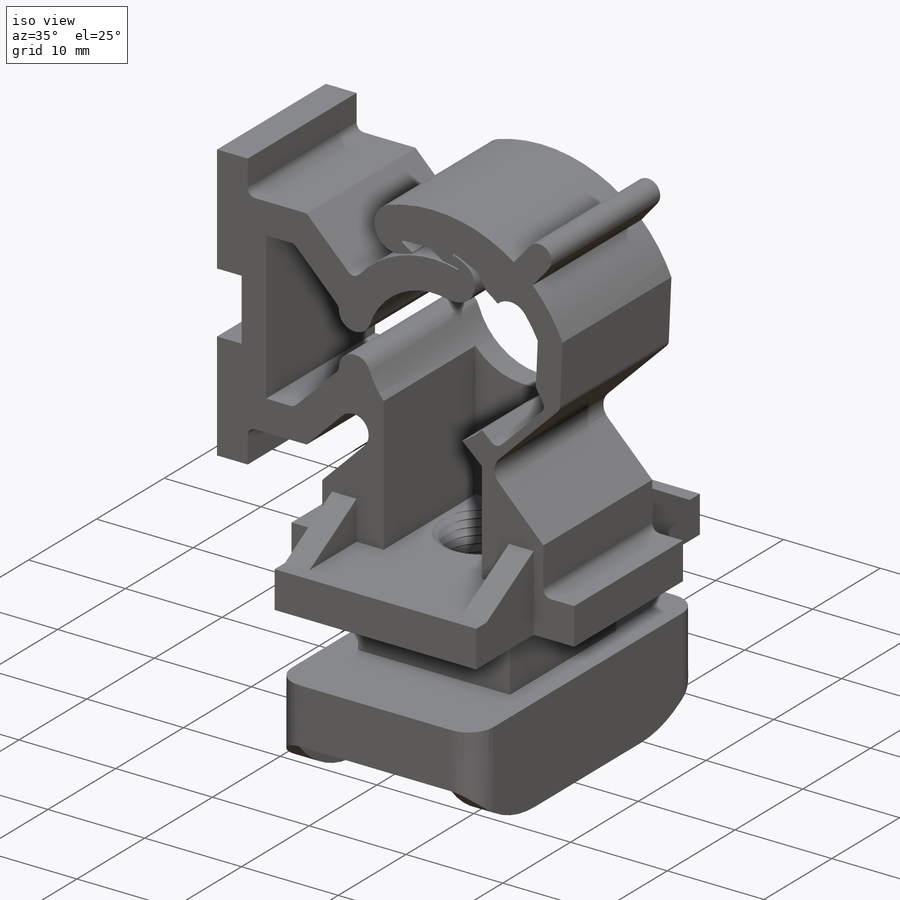
[diagram: iso view]
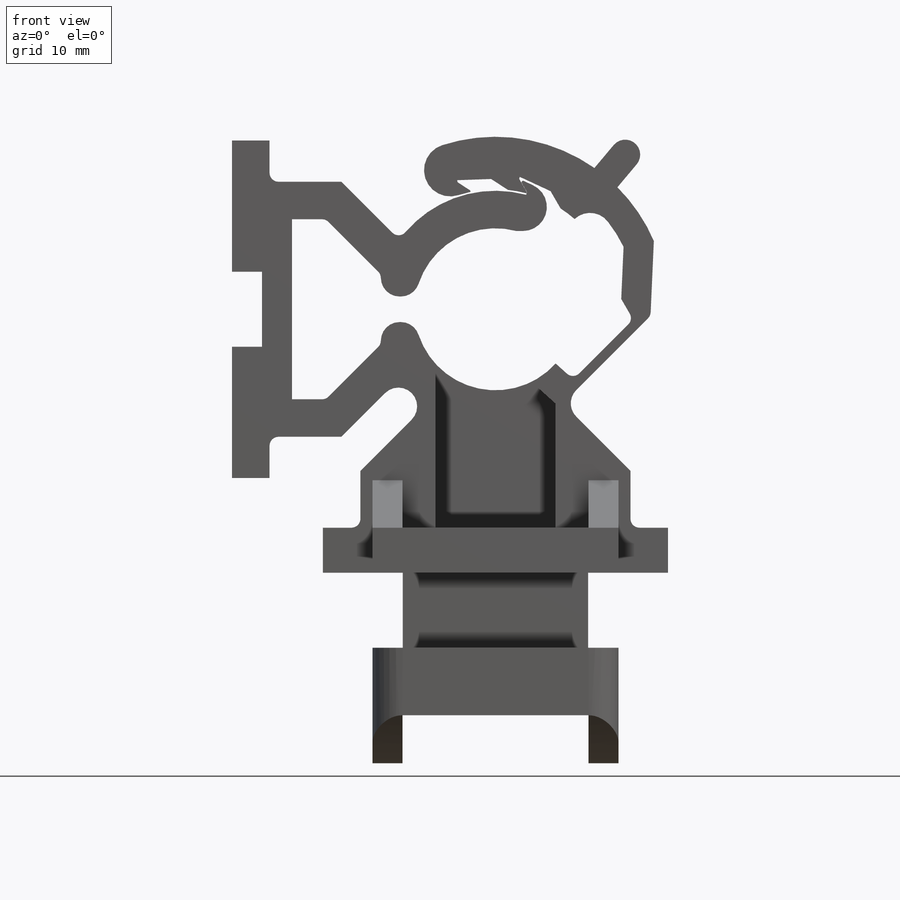
[diagram: front view]
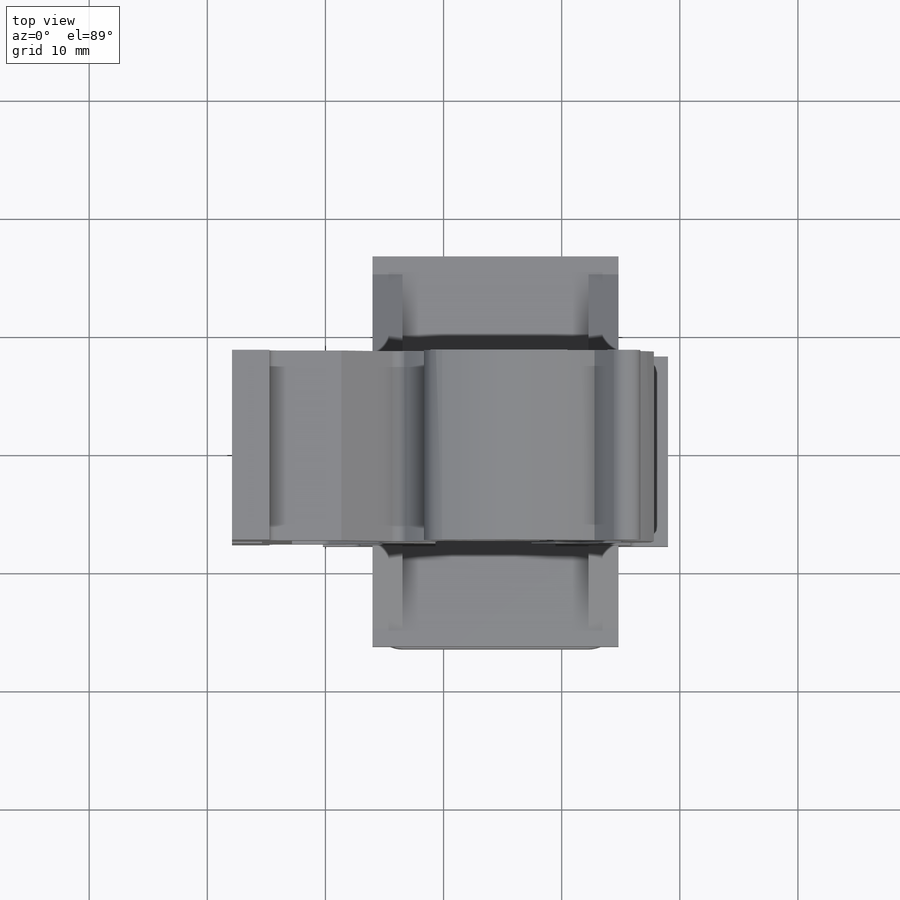
[diagram: top view]
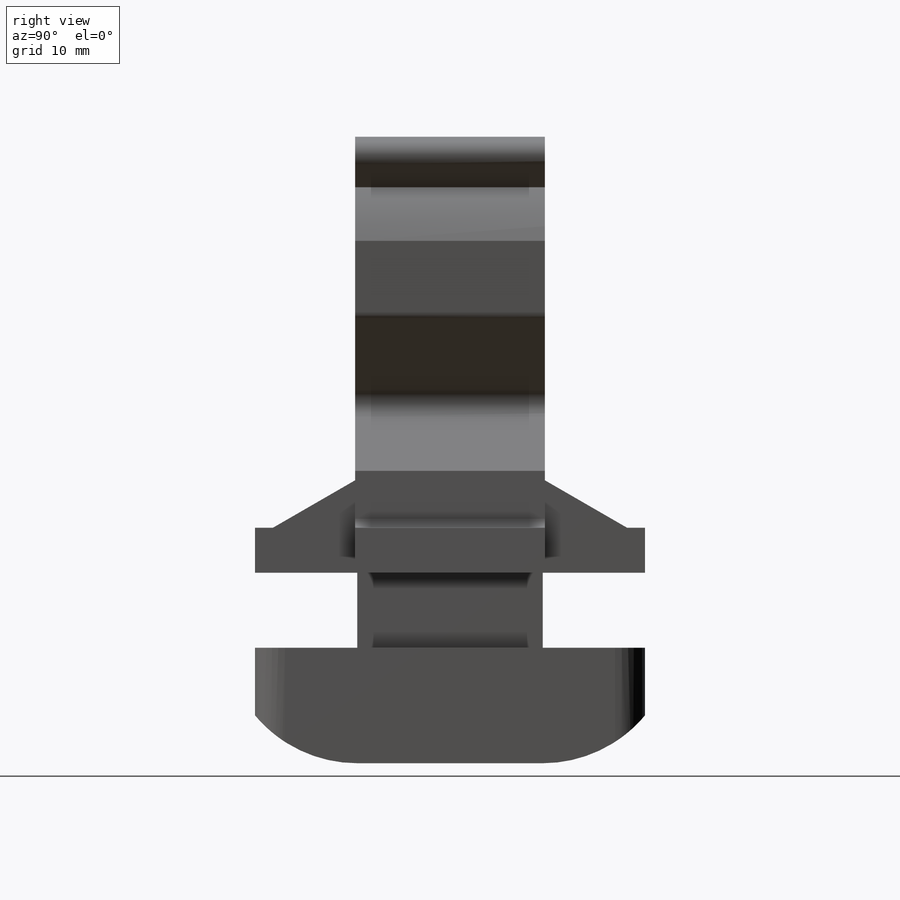
[diagram: right view]
SOLIDWORKS PART (.sldprt)
format: sldprt  version: not decoded by parser v0  size: 1,328,128 bytes
history: native  units: mm
features: reference x327, sketch x11, extrude x5, cut_extrude x4, material x1, plane x1, mirror x1, helix x1, sweep x1 (+12 scaffold rows collapsed)
feature tree (364):
  scaffold x12  (default folders/planes/origin — collapsed)
  material  "Material <not specified>"
  reference  "ImportedCurve2"
  reference  "ImportedCurve3"
  reference  "ImportedCurve4"
  reference  "ImportedCurve5"
  reference  "ImportedCurve6"
  reference  "ImportedCurve7"
  reference  "ImportedCurve8"
  reference  "ImportedCurve9"
  reference  "ImportedCurve10"
  reference  "ImportedCurve11"
  reference  "ImportedCurve12"
  reference  "ImportedCurve13"
  reference  "ImportedCurve14"
  reference  "ImportedCurve15"
  reference  "ImportedCurve16"
  reference  "ImportedCurve17"
  reference  "ImportedCurve18"
  reference  "ImportedCurve19"
  reference  "ImportedCurve20"
  reference  "ImportedCurve21"
  reference  "ImportedCurve22"
  reference  "ImportedCurve23"
  reference  "ImportedCurve24"
  reference  "ImportedCurve25"
  reference  "ImportedCurve26"
  reference  "ImportedCurve27"
  reference  "ImportedCurve28"
  reference  "ImportedCurve29"
  reference  "ImportedCurve30"
  reference  "ImportedCurve31"
  reference  "ImportedCurve32"
  reference  "ImportedCurve33"
  reference  "ImportedCurve34"
  reference  "ImportedCurve35"
  reference  "ImportedCurve36"
  reference  "ImportedCurve37"
  reference  "ImportedCurve38"
  reference  "ImportedCurve39"
  reference  "ImportedCurve40"
  reference  "ImportedCurve41"
  reference  "ImportedCurve42"
  reference  "ImportedCurve43"
  reference  "ImportedCurve44"
  reference  "ImportedCurve45"
  reference  "ImportedCurve46"
  reference  "ImportedCurve47"
  reference  "ImportedCurve48"
  reference  "ImportedCurve49"
  reference  "ImportedCurve50"
  reference  "ImportedCurve51"
  reference  "ImportedCurve52"
  reference  "ImportedCurve53"
  reference  "ImportedCurve54"
  reference  "ImportedCurve55"
  reference  "ImportedCurve56"
  reference  "ImportedCurve57"
  reference  "ImportedCurve58"
  reference  "ImportedCurve59"
  reference  "ImportedCurve60"
  reference  "ImportedCurve61"
  reference  "ImportedCurve62"
  reference  "ImportedCurve63"
  reference  "ImportedCurve64"
  reference  "ImportedCurve65"
  reference  "ImportedCurve66"
  reference  "ImportedCurve67"
  reference  "ImportedCurve68"
  reference  "ImportedCurve69"
  reference  "ImportedCurve70"
  reference  "ImportedCurve71"
  reference  "ImportedCurve72"
  reference  "ImportedCurve73"
  reference  "ImportedCurve74"
  reference  "ImportedCurve75"
  reference  "ImportedCurve76"
  reference  "ImportedCurve77"
  reference  "ImportedCurve78"
  reference  "ImportedCurve79"
  reference  "ImportedCurve80"
  reference  "ImportedCurve81"
  reference  "ImportedCurve82"
  reference  "ImportedCurve83"
  reference  "ImportedCurve84"
  reference  "ImportedCurve85"
  reference  "ImportedCurve86"
  reference  "ImportedCurve87"
  reference  "ImportedCurve88"
  reference  "ImportedCurve89"
  reference  "ImportedCurve90"
  reference  "ImportedCurve91"
  reference  "ImportedCurve92"
  reference  "ImportedCurve93"
  reference  "ImportedCurve94"
  reference  "ImportedCurve95"
  reference  "ImportedCurve96"
  reference  "ImportedCurve97"
  reference  "ImportedCurve98"
  reference  "ImportedCurve99"
  reference  "ImportedCurve100"
  reference  "ImportedCurve101"
  reference  "ImportedCurve102"
  reference  "ImportedCurve103"
  reference  "ImportedCurve104"
  reference  "ImportedCurve105"
  reference  "ImportedCurve106"
  reference  "ImportedCurve107"
  reference  "ImportedCurve108"
  reference  "ImportedCurve109"
  reference  "ImportedCurve110"
  reference  "ImportedCurve111"
  reference  "ImportedCurve112"
  reference  "ImportedCurve113"
  reference  "ImportedCurve114"
  reference  "ImportedCurve115"
  reference  "ImportedCurve116"
  reference  "ImportedCurve117"
  reference  "ImportedCurve118"
  reference  "ImportedCurve119"
  reference  "ImportedCurve120"
  reference  "ImportedCurve121"
  reference  "ImportedCurve122"
  reference  "ImportedCurve123"
  reference  "ImportedCurve124"
  reference  "ImportedCurve125"
  reference  "ImportedCurve126"
  reference  "ImportedCurve127"
  reference  "ImportedCurve128"
  reference  "ImportedCurve129"
  reference  "ImportedCurve130"
  reference  "ImportedCurve131"
  reference  "ImportedCurve132"
  reference  "ImportedCurve133"
  reference  "ImportedCurve134"
  reference  "ImportedCurve135"
  reference  "ImportedCurve136"
  reference  "ImportedCurve137"
  reference  "ImportedCurve138"
  reference  "ImportedCurve139"
  reference  "ImportedCurve140"
  reference  "ImportedCurve141"
  reference  "ImportedCurve142"
  reference  "ImportedCurve143"
  reference  "ImportedCurve144"
  reference  "ImportedCurve145"
  reference  "ImportedCurve146"
  reference  "ImportedCurve147"
  reference  "ImportedCurve148"
  reference  "ImportedCurve149"
  reference  "ImportedCurve150"
  reference  "ImportedCurve151"
  reference  "ImportedCurve152"
  reference  "ImportedCurve153"
  reference  "ImportedCurve154"
  reference  "ImportedCurve155"
  reference  "ImportedCurve156"
  reference  "ImportedCurve157"
  reference  "ImportedCurve158"
  reference  "ImportedCurve159"
  reference  "ImportedCurve160"
  reference  "ImportedCurve161"
  reference  "ImportedCurve162"
  reference  "ImportedCurve163"
  reference  "ImportedCurve164"
  reference  "ImportedCurve165"
  reference  "ImportedCurve166"
  reference  "ImportedCurve167"
  reference  "ImportedCurve168"
  reference  "ImportedCurve169"
  reference  "ImportedCurve170"
  reference  "ImportedCurve171"
  reference  "ImportedCurve172"
  reference  "ImportedCurve173"
  reference  "ImportedCurve174"
  reference  "ImportedCurve175"
  reference  "ImportedCurve176"
  reference  "ImportedCurve177"
  reference  "ImportedCurve178"
  reference  "ImportedCurve179"
  reference  "ImportedCurve180"
  reference  "ImportedCurve181"
  reference  "ImportedCurve182"
  reference  "ImportedCurve183"
  reference  "ImportedCurve184"
  reference  "ImportedCurve185"
  reference  "ImportedCurve186"
  reference  "ImportedCurve187"
  reference  "ImportedCurve188"
  reference  "ImportedCurve189"
  reference  "ImportedCurve190"
  reference  "ImportedCurve191"
  reference  "ImportedCurve192"
  reference  "ImportedCurve193"
  reference  "ImportedCurve194"
  reference  "ImportedCurve195"
  reference  "ImportedCurve196"
  reference  "ImportedCurve197"
  reference  "ImportedCurve198"
  reference  "ImportedCurve199"
  reference  "ImportedCurve200"
  reference  "ImportedCurve201"
  reference  "ImportedCurve202"
  reference  "ImportedCurve203"
  reference  "ImportedCurve204"
  reference  "ImportedCurve205"
  reference  "ImportedCurve206"
  reference  "ImportedCurve207"
  reference  "ImportedCurve208"
  reference  "ImportedCurve209"
  reference  "ImportedCurve210"
  reference  "ImportedCurve211"
  reference  "ImportedCurve212"
  reference  "ImportedCurve213"
  reference  "ImportedCurve214"
  reference  "ImportedCurve215"
  reference  "ImportedCurve216"
  reference  "ImportedCurve217"
  reference  "ImportedCurve218"
  reference  "ImportedCurve219"
  reference  "ImportedCurve220"
  reference  "ImportedCurve221"
  reference  "ImportedCurve222"
  reference  "ImportedCurve223"
  reference  "ImportedCurve224"
  reference  "ImportedCurve225"
  reference  "ImportedCurve226"
  reference  "ImportedCurve227"
  reference  "ImportedCurve228"
  reference  "ImportedCurve229"
  reference  "ImportedCurve230"
  reference  "ImportedCurve231"
  reference  "ImportedCurve232"
  reference  "ImportedCurve233"
  reference  "ImportedCurve234"
  reference  "ImportedCurve235"
  reference  "ImportedCurve236"
  reference  "ImportedCurve237"
  reference  "ImportedCurve238"
  reference  "ImportedCurve239"
  reference  "ImportedCurve240"
  reference  "ImportedCurve241"
  reference  "ImportedCurve242"
  reference  "ImportedCurve243"
  reference  "ImportedCurve244"
  reference  "ImportedCurve245"
  reference  "ImportedCurve246"
  reference  "ImportedCurve247"
  reference  "ImportedCurve248"
  reference  "ImportedCurve249"
  reference  "ImportedCurve250"
  reference  "ImportedCurve251"
  reference  "ImportedCurve252"
  reference  "ImportedCurve253"
  reference  "ImportedCurve254"
  reference  "ImportedCurve255"
  reference  "ImportedCurve256"
  reference  "ImportedCurve257"
  reference  "ImportedCurve258"
  reference  "ImportedCurve259"
  reference  "ImportedCurve260"
  reference  "ImportedCurve261"
  reference  "ImportedCurve262"
  reference  "ImportedCurve263"
  reference  "ImportedCurve264"
  reference  "ImportedCurve265"
  reference  "ImportedCurve266"
  reference  "ImportedCurve267"
  reference  "ImportedCurve268"
  reference  "ImportedCurve269"
  reference  "ImportedCurve270"
  reference  "ImportedCurve271"
  reference  "ImportedCurve272"
  reference  "ImportedCurve273"
  reference  "ImportedCurve274"
  reference  "ImportedCurve275"
  reference  "ImportedCurve276"
  reference  "ImportedCurve277"
  reference  "ImportedCurve278"
  reference  "ImportedCurve279"
  reference  "ImportedCurve280"
  reference  "ImportedCurve281"
  reference  "ImportedCurve282"
  reference  "ImportedCurve283"
  reference  "ImportedCurve284"
  reference  "ImportedCurve285"
  reference  "ImportedCurve286"
  reference  "ImportedCurve287"
  reference  "ImportedCurve288"
  reference  "ImportedCurve289"
  reference  "ImportedCurve290"
  reference  "ImportedCurve291"
  reference  "ImportedCurve292"
  reference  "ImportedCurve293"
  reference  "ImportedCurve294"
  reference  "ImportedCurve295"
  reference  "ImportedCurve296"
  reference  "ImportedCurve297"
  reference  "ImportedCurve298"
  reference  "ImportedCurve299"
  reference  "ImportedCurve300"
  reference  "ImportedCurve301"
  reference  "ImportedCurve302"
  reference  "ImportedCurve303"
  reference  "ImportedCurve304"
  reference  "ImportedCurve305"
  reference  "ImportedCurve306"
  reference  "ImportedCurve307"
  reference  "ImportedCurve308"
  reference  "ImportedCurve309"
  reference  "ImportedCurve310"
  reference  "ImportedCurve311"
  reference  "ImportedCurve312"
  reference  "ImportedCurve313"
  reference  "ImportedCurve314"
  reference  "ImportedCurve315"
  reference  "ImportedCurve316"
  reference  "ImportedCurve317"
  reference  "ImportedCurve318"
  reference  "ImportedCurve319"
  reference  "ImportedCurve320"
  reference  "ImportedCurve321"
  reference  "ImportedCurve322"
  reference  "ImportedCurve323"
  reference  "ImportedCurve324"
  reference  "ImportedCurve325"
  reference  "ImportedCurve326"
  reference  "ImportedCurve327"
  reference  "ImportedCurve328"
  sketch  "Sketch1"  dims[D1=6.35mm]
  extrude  "Boss-Extrude1"  Depth=16.0655mm
  sketch  "Sketch2"  dims[D1=10.16mm D2=2.54mm D3=2.54mm]
  cut_extrude  "Cut-Extrude1"  Depth=2.54mm
  sketch  "Sketch3"  dims[D1=20.828mm D2=33.02mm]
  extrude  "Boss-Extrude2"  Depth=3.81mm
  sketch  "Sketch4"  dims[c1.D1=~5.658942mm c2.D1=45.0deg c2.D2=1.524mm c3.D1=~6.19125mm c4.D1=30.0deg c4.D3=~6.95325mm]
  extrude  "Boss-Extrude3"  Depth=2.54mm
  plane  "Plane1"
  mirror  "Mirror1"
  sketch  "Sketch5"  dims[D1=15.6972mm D2=~14.353806mm]
  extrude  "Boss-Extrude4"  Depth=6.35mm
  sketch  "Sketch6"  dims[D1=2.54mm]
  extrude  "Boss-Extrude5"  Depth=9.779mm
  sketch  "Sketch7"  dims[D1=4.064mm]
  cut_extrude  "Cut-Extrude2"  [1 undecoded]
  sketch  "Sketch8"
  cut_extrude  "Cut-Extrude3"  [1 undecoded]
  sketch  "Sketch9"  dims[D1=8.2296mm]
  cut_extrude  "Cut-Extrude4"  Depth=16.129mm
  sketch  "Sketch10"  dims[c1.D1=~0.853818mm c2.D1=60.0deg c2.D2=0.762mm]
  sketch  "Sketch11"
  helix  "Helix/Spiral1"  Pitch=17.12595mm
  sweep  "Cut-Sweep1"
decode coverage: 17 of 23 modeling features carry decoded parameters
note: ~ marks probable driven/reference dimensions
note: 2 parameter values undecoded
note: suppression state not decoded; provenance and decode notes live in map.json
